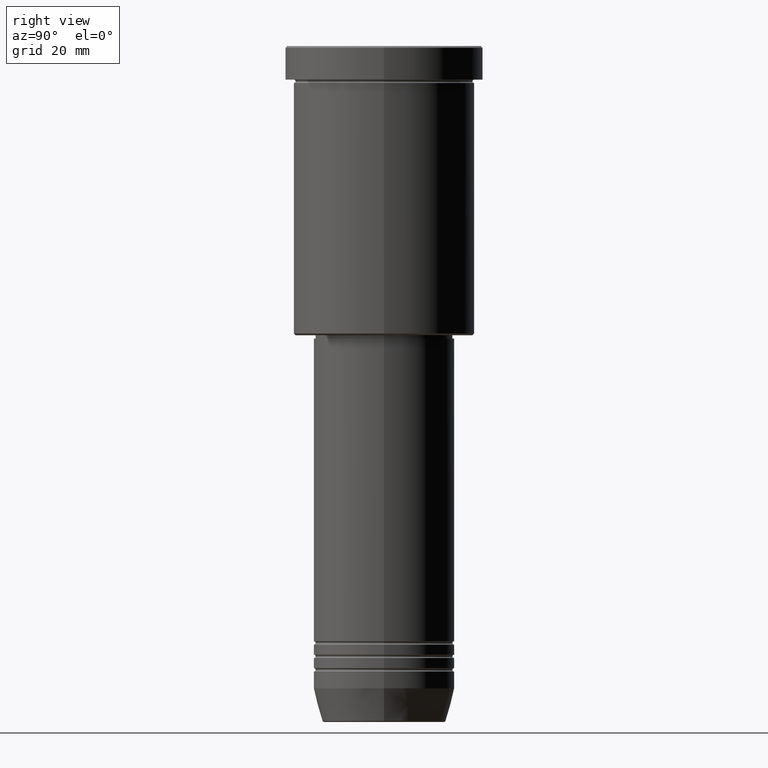
[diagram: clean part render]
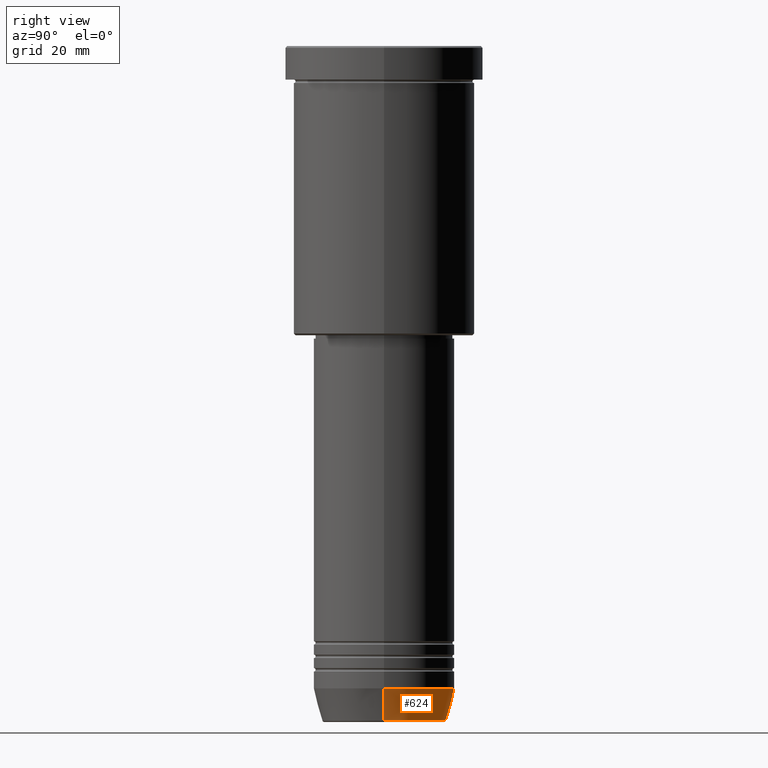
[diagram: same view with one face highlighted and labeled with its STEP entity id]
A machine part, right view. The second image highlights one B-rep face of the part: STEP entity #624.
In plain terms, the highlighted conical surface has half-angle 15 deg.
Its self-contained STEP definition (entity closure, byte-faithful):
#8 = ORIENTED_EDGE ( 'NONE', *, *, #796, .T. ) ;
#53 = DIRECTION ( 'NONE',  ( 1.000000000000000000, 0.000000000000000000, 0.000000000000000000 ) ) ;
#54 = ORIENTED_EDGE ( 'NONE', *, *, #1148, .F. ) ;
#95 = CARTESIAN_POINT ( 'NONE',  ( 21.00000000000000000, 0.000000000000000000, -191.0000000000000000 ) ) ;
#138 = ORIENTED_EDGE ( 'NONE', *, *, #376, .T. ) ;
#164 = EDGE_CURVE ( 'NONE', #218, #480, #495, .T. ) ;
#176 = DIRECTION ( 'NONE',  ( 1.000000000000000000, 0.000000000000000000, 0.000000000000000000 ) ) ;
#201 = VECTOR ( 'NONE', #877, 1000.000000000000114 ) ;
#210 = DIRECTION ( 'NONE',  ( 0.2588190451025211836, 0.000000000000000000, 0.9659258262890680902 ) ) ;
#218 = VERTEX_POINT ( 'NONE', #305 ) ;
#223 = CARTESIAN_POINT ( 'NONE',  ( 21.00000000000000000, 0.000000000000000000, -191.0000000000000000 ) ) ;
#241 = ORIENTED_EDGE ( 'NONE', *, *, #164, .F. ) ;
#284 = CIRCLE ( 'NONE', #873, 18.41980749484383040 ) ;
#305 = CARTESIAN_POINT ( 'NONE',  ( 18.41980749484383040, 0.000000000000000000, -200.6294095225512990 ) ) ;
#339 = VERTEX_POINT ( 'NONE', #348 ) ;
#348 = CARTESIAN_POINT ( 'NONE',  ( -21.00000000000000000, 2.571758278209441661E-15, -191.0000000000000000 ) ) ;
#376 = EDGE_CURVE ( 'NONE', #218, #475, #284, .T. ) ;
#405 = AXIS2_PLACEMENT_3D ( 'NONE', #974, #1056, #176 ) ;
#411 = CARTESIAN_POINT ( 'NONE',  ( -21.00000000000000000, 2.571758278209441661E-15, -191.0000000000000000 ) ) ;
#464 = VECTOR ( 'NONE', #210, 1000.000000000000114 ) ;
#475 = VERTEX_POINT ( 'NONE', #534 ) ;
#480 = VERTEX_POINT ( 'NONE', #95 ) ;
#495 = LINE ( 'NONE', #223, #464 ) ;
#508 = LINE ( 'NONE', #411, #201 ) ;
#509 = DIRECTION ( 'NONE',  ( -0.000000000000000000, -0.000000000000000000, 1.000000000000000000 ) ) ;
#534 = CARTESIAN_POINT ( 'NONE',  ( -18.41980749484383040, 2.413767053578267064E-15, -200.6294095225512990 ) ) ;
#563 = CONICAL_SURFACE ( 'NONE', #661, 21.00000000000000000, 0.2617993877991499074 ) ;
#624 = ADVANCED_FACE ( 'NONE', ( #965 ), #563, .T. ) ;
#661 = AXIS2_PLACEMENT_3D ( 'NONE', #777, #509, #53 ) ;
#696 = CARTESIAN_POINT ( 'NONE',  ( 0.000000000000000000, 0.000000000000000000, -200.6294095225512990 ) ) ;
#711 = CIRCLE ( 'NONE', #405, 21.00000000000000000 ) ;
#777 = CARTESIAN_POINT ( 'NONE',  ( 0.000000000000000000, 0.000000000000000000, -191.0000000000000000 ) ) ;
#796 = EDGE_CURVE ( 'NONE', #475, #339, #508, .T. ) ;
#873 = AXIS2_PLACEMENT_3D ( 'NONE', #696, #1013, #928 ) ;
#877 = DIRECTION ( 'NONE',  ( -0.2588190451025211836, 3.169619151431770488E-17, 0.9659258262890680902 ) ) ;
#928 = DIRECTION ( 'NONE',  ( 1.000000000000000000, 0.000000000000000000, 0.000000000000000000 ) ) ;
#965 = FACE_OUTER_BOUND ( 'NONE', #1135, .T. ) ;
#974 = CARTESIAN_POINT ( 'NONE',  ( 0.000000000000000000, 0.000000000000000000, -191.0000000000000000 ) ) ;
#1013 = DIRECTION ( 'NONE',  ( -0.000000000000000000, -0.000000000000000000, 1.000000000000000000 ) ) ;
#1056 = DIRECTION ( 'NONE',  ( -0.000000000000000000, -0.000000000000000000, 1.000000000000000000 ) ) ;
#1135 = EDGE_LOOP ( 'NONE', ( #138, #8, #54, #241 ) ) ;
#1148 = EDGE_CURVE ( 'NONE', #480, #339, #711, .T. ) ;